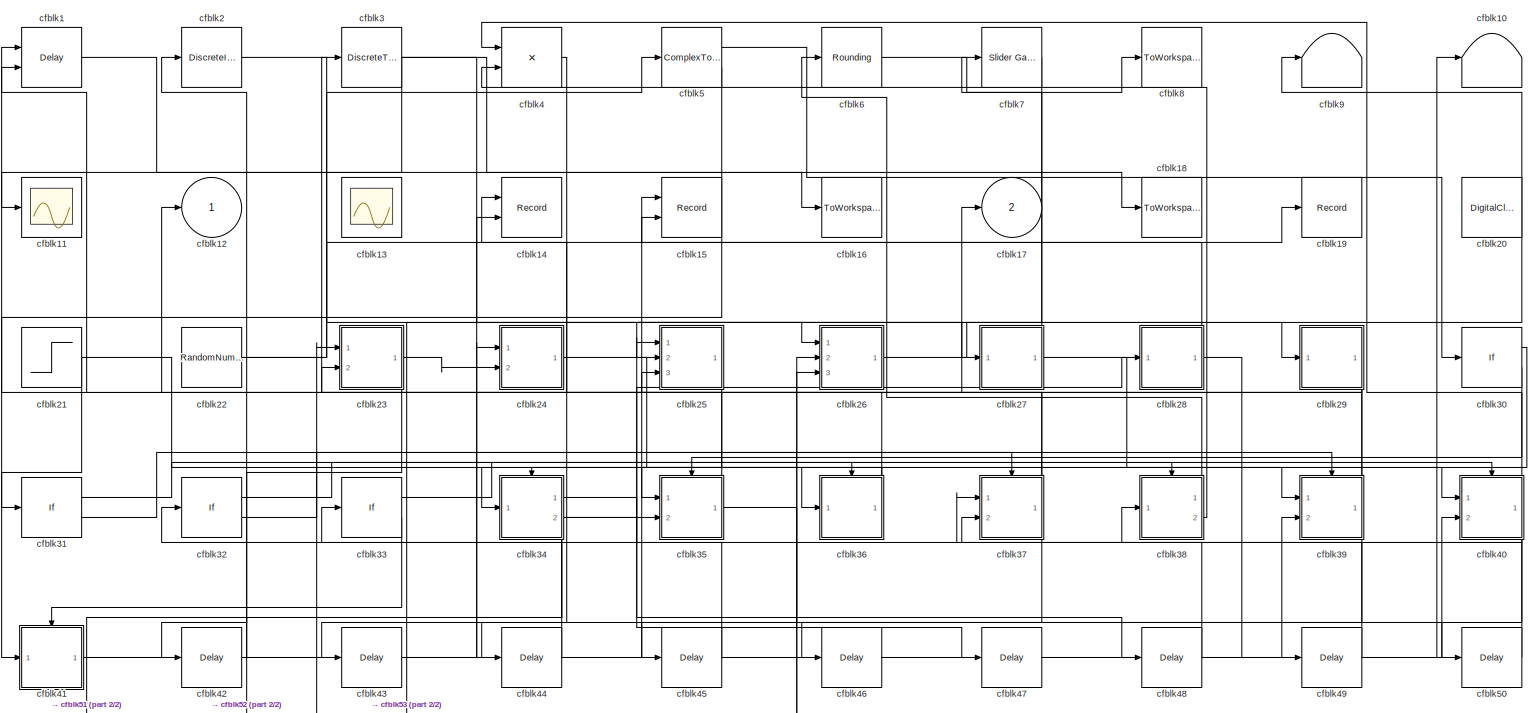
[diagram: root canvas - part 1/2, most of the canvas]
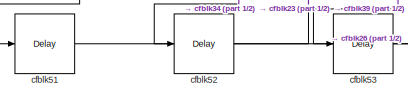
[diagram: root canvas - part 2/2, bottom left region]
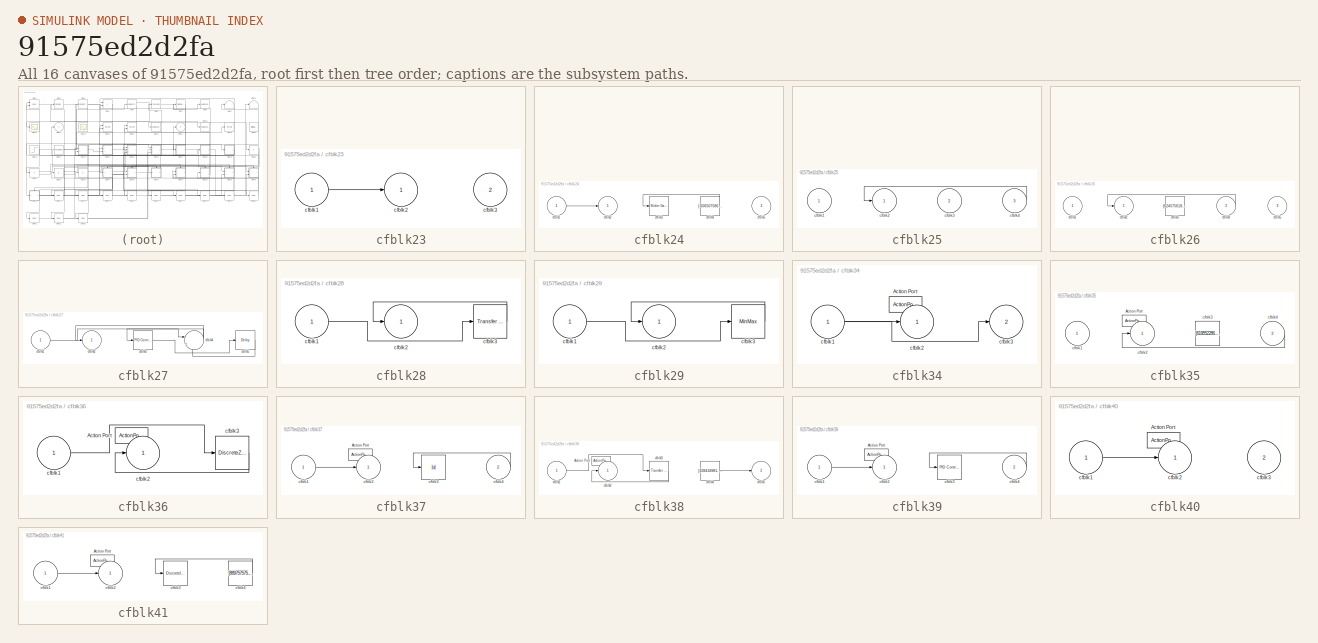
[diagram: thumbnail index - all 16 canvases of the model, root first then tree order]
MODEL slx_91575ed2d2fa
KIND model
CONFIG AbsTol = auto
CONFIG EnableMultiTasking = off
CONFIG FixedStep = auto
CONFIG MaxStep = auto
CONFIG MinStep = auto
CONFIG RelTol = 1e-3
CONFIG SampleTimeConstraint = Unconstrained
CONFIG SolverName = VariableStepAuto
CONFIG StartTime = 0.0
CONFIG StopTime = 10.0
BLOCK [Delay] cfblk1
  InputPortMap = u0,e6
  Ports = [2, 1]
  SampleTime = 1
  ShowEnablePort = on
BLOCK [Terminator] cfblk10
BLOCK [Scope] cfblk11
  Floating = off
  NumInputPorts = 1
  Ports = [1]
BLOCK [Outport] cfblk12
BLOCK [Scope] cfblk13
  Floating = on
  NumInputPorts = 1
  Ports = []
BLOCK [Record] cfblk14
  CompatibilityTag = XY
  FileSettingsInternal = {"entries":[{"content":{"excelSettings":{"content":{},"type":"Streamout.ExcelSettings"}},"type":"Streamout.FileSettingStorage","uuid":"b1ceb9cc-7e03-40a6-99d7-b30e3dfb90d7"}],"packageUris":["http://schema.mathworks.com/mf0/streamout_blocks/R2020a"],"version":"1.0"}
  Layout = [1 1]
  Ports = [2]
  SignalsInternal = {"entries":[{"content":{"signals":[{"content":{"blockPath":["sampleModel115/cfblk14"],"channel":[],"dimensions":[1],"domain":"sampleModel115/cfblk14","lineColor":"#a2142f","plots":[1],"port":1,"sid":[""],"signalID":4053,"signalName":"cfblk36"},"type":"RecordBlkView.Signal","uuid":"947220fe-0bb9-4a12-b0be-18da4abc70e8"},{"content":{"blockPath":["sampleModel115/cfblk14"],"channel":[],"dimensions":[1...<+383ch>
  VisualizationBindings = {"xyplotplugin":{"info":[{"series":[{"bindingParametersList":[{"parameter":"X-Axis","signalID":4053,"signalName":"cfblk36"},{"parameter":"Y-Axis","signalID":4057,"signalName":"cfblk41"}],"seriesID":55927}],"subplotID":1}]}}
BLOCK [Record] cfblk15
  CompatibilityTag = XY
  FileSettingsInternal = {"entries":[{"content":{"excelSettings":{"content":{},"type":"Streamout.ExcelSettings"}},"type":"Streamout.FileSettingStorage","uuid":"98b4cf14-7218-4872-a4ba-8d7d1830e3d3"}],"packageUris":["http://schema.mathworks.com/mf0/streamout_blocks/R2020a"],"version":"1.0"}
  Layout = [1 1]
  Ports = [2]
  SignalsInternal = {"entries":[{"content":{"signals":[{"content":{"blockPath":["sampleModel115/cfblk15"],"channel":[],"dimensions":[1],"domain":"sampleModel115/cfblk15","lineColor":"#a2142f","plots":[1],"port":1,"sid":[""],"signalID":4061,"signalName":"cfblk41"},"type":"RecordBlkView.Signal","uuid":"48149283-0b4a-4ff8-890c-8be74494f9ea"},{"content":{"blockPath":["sampleModel115/cfblk15"],"channel":[],"dimensions":[1...<+383ch>
  VisualizationBindings = {"xyplotplugin":{"info":[{"series":[{"bindingParametersList":[{"parameter":"X-Axis","signalID":4061,"signalName":"cfblk41"},{"parameter":"Y-Axis","signalID":4065,"signalName":"cfblk28"}],"seriesID":28598}],"subplotID":1}]}}
BLOCK [ToWorkspace] cfblk16
  FixptAsFi = on
  MaxDataPoints = inf
  Ports = [1]
  SampleTime = -1
  SaveFormat = Timeseries
  VariableName = sudrskh
BLOCK [Outport] cfblk17
  Port = 2
BLOCK [ToWorkspace] cfblk18
  FixptAsFi = on
  MaxDataPoints = inf
  Ports = [1]
  SampleTime = -1
  SaveFormat = Timeseries
  VariableName = dmhqbax
BLOCK [Record] cfblk19
  FileSettingsInternal = {"entries":[{"content":{"excelSettings":{"content":{},"type":"Streamout.ExcelSettings"}},"type":"Streamout.FileSettingStorage","uuid":"cad0cdc5-0fe9-49e7-8a7a-dd39cebd2482"}],"packageUris":["http://schema.mathworks.com/mf0/streamout_blocks/R2020a"],"version":"1.0"}
  Ports = [1]
  SignalsInternal = {"entries":[{"content":{"signals":[{"content":{"blockPath":["sampleModel115/cfblk19"],"channel":[],"dimensions":[1],"domain":"sampleModel115/cfblk19","lineColor":"#d95319","plots":[1],"port":1,"sid":[""],"signalID":4069,"signalName":"cfblk22"},"type":"RecordBlkView.Signal","uuid":"e627ca45-b87b-4f08-af19-0e4785aecbb7"}]},"type":"RecordBlkView.InputSignals","uuid":"f235e641-5202-4a38-b892-f540294f6...<+97ch>
  VisualizationBindings = {"sparklinesplugin":{"info":[{"bindingParametersList":[],"subplotID":1}]}}
BLOCK [DiscreteIntegrator] cfblk2
  ICPrevOutput = DiscIntNeverNeededParam
  ICPrevScaledInput = DiscIntNeverNeededParam
  InitialConditionSetting = Auto
  Ports = [1, 1]
BLOCK [DigitalClock] cfblk20
BLOCK [Step] cfblk21
  After = [-216518547.017650]
  Before = [-107082885.337694]
  SampleTime = 0
  Time = [16.000000]
BLOCK [RandomNumber] cfblk22
  Mean = [-52247.991135]
  SampleTime = 0.1
  Seed = [709185033.000000]
  Variance = [91177.306892]
BLOCK [SubSystem] cfblk23
  Ports = [2, 1]
  RequestExecContextInheritance = off
BLOCK [Inport] cfblk23/cfblk1
BLOCK [Outport] cfblk23/cfblk2
BLOCK [Inport] cfblk23/cfblk3
  Port = 2
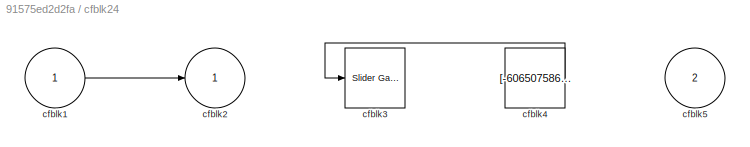
BLOCK [SubSystem] cfblk24
  Ports = [2, 1]
  RequestExecContextInheritance = off
BLOCK [Inport] cfblk24/cfblk1
BLOCK [Outport] cfblk24/cfblk2
BLOCK [Reference] cfblk24/cfblk3  REF=simulink/Math
Operations/Slider
Gain
  Ports = [1, 1]
  SourceBlock = simulink/Math\nOperations/Slider\nGain
  SourceProductBaseCode = SL
  SourceType = Slider Gain
BLOCK [Constant] cfblk24/cfblk4
  SampleTime = 1
  Value = [-606507586.060954]
BLOCK [Inport] cfblk24/cfblk5
  Port = 2
BLOCK [SubSystem] cfblk25
  Ports = [3, 1]
  RequestExecContextInheritance = off
BLOCK [Inport] cfblk25/cfblk1
BLOCK [Outport] cfblk25/cfblk2
BLOCK [Inport] cfblk25/cfblk3
  Port = 2
BLOCK [Inport] cfblk25/cfblk4
  Port = 3
BLOCK [SubSystem] cfblk26
  Ports = [3, 1]
  RequestExecContextInheritance = off
BLOCK [Inport] cfblk26/cfblk1
BLOCK [Outport] cfblk26/cfblk2
BLOCK [Constant] cfblk26/cfblk3
  SampleTime = 1
  Value = [624575618.430073]
BLOCK [Inport] cfblk26/cfblk4
  Port = 2
BLOCK [Inport] cfblk26/cfblk5
  Port = 3
BLOCK [SubSystem] cfblk27
  Ports = [1, 1]
  RequestExecContextInheritance = off
BLOCK [Inport] cfblk27/cfblk1
BLOCK [Outport] cfblk27/cfblk2
BLOCK [Reference] cfblk27/cfblk3  REF=slpidlib/PID Controller
  Ports = [1, 1]
  SourceBlock = slpidlib/PID Controller
  SourceProductBaseCode = SL
  SourceType = PID 1dof
BLOCK [Sum] cfblk27/cfblk4
  Inputs = |++
  Ports = [2, 1]
BLOCK [Delay] cfblk27/cfblk5
  InputPortMap = u0
  Ports = [1, 1]
  SampleTime = 1
BLOCK [SubSystem] cfblk28
  Ports = [1, 1]
  RequestExecContextInheritance = off
BLOCK [Inport] cfblk28/cfblk1
BLOCK [Outport] cfblk28/cfblk2
BLOCK [Reference] cfblk28/cfblk3  REF=simulink/Discrete/Transfer Fcn
Real Zero
  Ports = [1, 1]
  SourceBlock = simulink/Discrete/Transfer Fcn\nReal Zero
  SourceProductBaseCode = SL
  SourceType = Transfer Fcn Real Zero
BLOCK [SubSystem] cfblk29
  Ports = [1, 1]
  RequestExecContextInheritance = off
BLOCK [Inport] cfblk29/cfblk1
BLOCK [Outport] cfblk29/cfblk2
BLOCK [MinMax] cfblk29/cfblk3
  Function = max
  Ports = [1, 1]
BLOCK [DiscreteTransferFcn] cfblk3
  InputPortMap = u0
  Ports = [1, 1]
  SampleTime = 1
BLOCK [If] cfblk30
  IfExpression = u1 >= 0
  Ports = [1, 2]
  SampleTime = 1
BLOCK [If] cfblk31
  IfExpression = u1 >= 0
  Ports = [1, 2]
  SampleTime = 1
BLOCK [If] cfblk32
  IfExpression = u1 >= 0
  Ports = [1, 2]
  SampleTime = 1
BLOCK [If] cfblk33
  IfExpression = u1 >= 0
  Ports = [1, 2]
  SampleTime = 1
BLOCK [SubSystem] cfblk34
  Ports = [1, 2, 0, 0, 0, 0, 0, 1]
  RequestExecContextInheritance = off
  TreatAsAtomicUnit = on
BLOCK [ActionPort] cfblk34/Action Port
  ActionPortLabel = if(u1 >= 0)
BLOCK [Inport] cfblk34/cfblk1
BLOCK [Outport] cfblk34/cfblk2
BLOCK [Outport] cfblk34/cfblk3
  Port = 2
BLOCK [SubSystem] cfblk35
  Ports = [2, 1, 0, 0, 0, 0, 0, 1]
  RequestExecContextInheritance = off
  TreatAsAtomicUnit = on
BLOCK [ActionPort] cfblk35/Action Port
  ActionPortLabel = else
BLOCK [Inport] cfblk35/cfblk1
BLOCK [Outport] cfblk35/cfblk2
BLOCK [Constant] cfblk35/cfblk3
  SampleTime = 1
  Value = [619552286.522777]
BLOCK [Inport] cfblk35/cfblk4
  Port = 2
BLOCK [SubSystem] cfblk36
  Ports = [1, 1, 0, 0, 0, 0, 0, 1]
  RequestExecContextInheritance = off
  TreatAsAtomicUnit = on
BLOCK [ActionPort] cfblk36/Action Port
  ActionPortLabel = if(u1 >= 0)
BLOCK [Inport] cfblk36/cfblk1
BLOCK [Outport] cfblk36/cfblk2
BLOCK [DiscreteZeroPole] cfblk36/cfblk3
  Gain = 1
  Poles = [0 0.5]
  SampleTime = -1
BLOCK [SubSystem] cfblk37
  Ports = [2, 1, 0, 0, 0, 0, 0, 1]
  RequestExecContextInheritance = off
  TreatAsAtomicUnit = on
BLOCK [ActionPort] cfblk37/Action Port
  ActionPortLabel = else
BLOCK [Inport] cfblk37/cfblk1
BLOCK [Outport] cfblk37/cfblk2
BLOCK [Abs] cfblk37/cfblk3
  SaturateOnIntegerOverflow = off
BLOCK [Inport] cfblk37/cfblk4
  Port = 2
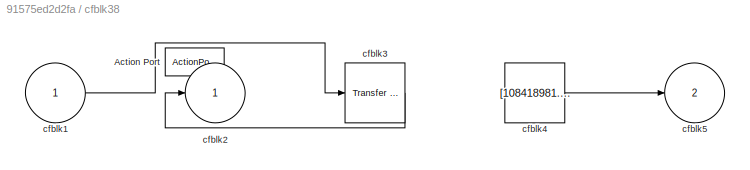
BLOCK [SubSystem] cfblk38
  Ports = [1, 2, 0, 0, 0, 0, 0, 1]
  RequestExecContextInheritance = off
  TreatAsAtomicUnit = on
BLOCK [ActionPort] cfblk38/Action Port
  ActionPortLabel = if(u1 >= 0)
BLOCK [Inport] cfblk38/cfblk1
BLOCK [Outport] cfblk38/cfblk2
BLOCK [Reference] cfblk38/cfblk3  REF=simulink/Discrete/Transfer Fcn
First Order
  Ports = [1, 1]
  SourceBlock = simulink/Discrete/Transfer Fcn\nFirst Order
  SourceProductBaseCode = SL
  SourceType = First Order Transfer Fcn
BLOCK [Constant] cfblk38/cfblk4
  SampleTime = 1
  Value = [108418981.364866]
BLOCK [Outport] cfblk38/cfblk5
  Port = 2
BLOCK [SubSystem] cfblk39
  Ports = [2, 1, 0, 0, 0, 0, 0, 1]
  RequestExecContextInheritance = off
  TreatAsAtomicUnit = on
BLOCK [ActionPort] cfblk39/Action Port
  ActionPortLabel = else
BLOCK [Inport] cfblk39/cfblk1
BLOCK [Outport] cfblk39/cfblk2
BLOCK [Reference] cfblk39/cfblk3  REF=slpidlib/PID Controller
  Ports = [1, 1]
  SourceBlock = slpidlib/PID Controller
  SourceProductBaseCode = SL
  SourceType = PID 1dof
BLOCK [Inport] cfblk39/cfblk4
  Port = 2
BLOCK [Product] cfblk4
  Inputs = **
  Ports = [2, 1]
BLOCK [SubSystem] cfblk40
  Ports = [2, 1, 0, 0, 0, 0, 0, 1]
  RequestExecContextInheritance = off
  TreatAsAtomicUnit = on
BLOCK [ActionPort] cfblk40/Action Port
  ActionPortLabel = if(u1 >= 0)
BLOCK [Inport] cfblk40/cfblk1
BLOCK [Outport] cfblk40/cfblk2
BLOCK [Inport] cfblk40/cfblk3
  Port = 2
BLOCK [SubSystem] cfblk41
  Ports = [1, 1, 0, 0, 0, 0, 0, 1]
  RequestExecContextInheritance = off
  TreatAsAtomicUnit = on
BLOCK [ActionPort] cfblk41/Action Port
  ActionPortLabel = else
BLOCK [Inport] cfblk41/cfblk1
BLOCK [Outport] cfblk41/cfblk2
BLOCK [DiscreteIntegrator] cfblk41/cfblk3
  ICPrevOutput = DiscIntNeverNeededParam
  ICPrevScaledInput = DiscIntNeverNeededParam
  InitialConditionSetting = Auto
  Ports = [1, 1]
  SampleTime = -1
BLOCK [Constant] cfblk41/cfblk4
  SampleTime = 1
  Value = [889757575.999530]
BLOCK [Delay] cfblk42
  InputPortMap = u0
  Ports = [1, 1]
  SampleTime = 1
BLOCK [Delay] cfblk43
  InputPortMap = u0
  Ports = [1, 1]
  SampleTime = 1
BLOCK [Delay] cfblk44
  InputPortMap = u0
  Ports = [1, 1]
  SampleTime = 1
BLOCK [Delay] cfblk45
  InputPortMap = u0
  Ports = [1, 1]
  SampleTime = 1
BLOCK [Delay] cfblk46
  InputPortMap = u0
  Ports = [1, 1]
  SampleTime = 1
BLOCK [Delay] cfblk47
  InputPortMap = u0
  Ports = [1, 1]
  SampleTime = 1
BLOCK [Delay] cfblk48
  InputPortMap = u0
  Ports = [1, 1]
  SampleTime = 1
BLOCK [Delay] cfblk49
  InputPortMap = u0
  Ports = [1, 1]
  SampleTime = 1
BLOCK [ComplexToRealImag] cfblk5
  Ports = [1, 2]
BLOCK [Delay] cfblk50
  InputPortMap = u0
  Ports = [1, 1]
  SampleTime = 1
BLOCK [Delay] cfblk51
  InputPortMap = u0
  Ports = [1, 1]
  SampleTime = 1
BLOCK [Delay] cfblk52
  InputPortMap = u0
  Ports = [1, 1]
  SampleTime = 1
BLOCK [Delay] cfblk53
  InputPortMap = u0
  Ports = [1, 1]
  SampleTime = 1
BLOCK [Rounding] cfblk6
BLOCK [Reference] cfblk7  REF=simulink/Math
Operations/Slider
Gain
  Ports = [1, 1]
  SourceBlock = simulink/Math\nOperations/Slider\nGain
  SourceProductBaseCode = SL
  SourceType = Slider Gain
BLOCK [ToWorkspace] cfblk8
  FixptAsFi = on
  MaxDataPoints = inf
  Ports = [1]
  SampleTime = -1
  SaveFormat = Timeseries
  VariableName = sciofoe
BLOCK [Terminator] cfblk9
LINE cfblk1:1 -> cfblk18:1
NET cfblk20:1 -> cfblk25:2, cfblk9:1
NET cfblk21:1 -> cfblk31:1, cfblk36:1
NET cfblk22:1 -> cfblk19:1, cfblk5:1
LINE cfblk23/cfblk1:1 -> cfblk23/cfblk2:1
NET cfblk23:1 -> cfblk24:2, cfblk42:1
LINE cfblk24/cfblk1:1 -> cfblk24/cfblk2:1
LINE cfblk24/cfblk4:1 -> cfblk24/cfblk3:1
LINE cfblk24:1 -> cfblk39:1
LINE cfblk25/cfblk4:1 -> cfblk25/cfblk2:1
LINE cfblk25:1 -> cfblk34:1
LINE cfblk26/cfblk4:1 -> cfblk26/cfblk2:1
LINE cfblk26:1 -> cfblk29:1
LINE cfblk27/cfblk1:1 -> cfblk27/cfblk4:1
LINE cfblk27/cfblk3:1 -> cfblk27/cfblk5:1
NET cfblk27/cfblk4:1 -> cfblk27/cfblk2:1, cfblk27/cfblk3:1
LINE cfblk27/cfblk5:1 -> cfblk27/cfblk4:2
NET cfblk27:1 -> cfblk40:1, cfblk7:1
LINE cfblk28/cfblk1:1 -> cfblk28/cfblk3:1
LINE cfblk28/cfblk3:1 -> cfblk28/cfblk2:1
NET cfblk28:1 -> cfblk15:2, cfblk49:1
LINE cfblk29/cfblk1:1 -> cfblk29/cfblk3:1
LINE cfblk29/cfblk3:1 -> cfblk29/cfblk2:1
NET cfblk29:1 -> cfblk1:1, cfblk23:2
LINE cfblk2:1 -> cfblk26:1
LINE cfblk30:1 -> cfblk34:ifaction
LINE cfblk30:2 -> cfblk35:ifaction
LINE cfblk31:1 -> cfblk36:ifaction
LINE cfblk31:2 -> cfblk37:ifaction
LINE cfblk32:1 -> cfblk38:ifaction
LINE cfblk32:2 -> cfblk39:ifaction
LINE cfblk33:1 -> cfblk40:ifaction
LINE cfblk33:2 -> cfblk41:ifaction
NET cfblk34/cfblk1:1 -> cfblk34/cfblk2:1, cfblk34/cfblk3:1
LINE cfblk34:1 -> cfblk47:1
NET cfblk34:2 -> cfblk28:1, cfblk35:2, cfblk48:1, cfblk51:1, cfblk52:1
LINE cfblk35/cfblk4:1 -> cfblk35/cfblk2:1
NET cfblk35:1 -> cfblk12:1, cfblk50:1
LINE cfblk36/cfblk1:1 -> cfblk36/cfblk3:1
LINE cfblk36/cfblk3:1 -> cfblk36/cfblk2:1
NET cfblk36:1 -> cfblk14:1, cfblk35:1
LINE cfblk37/cfblk1:1 -> cfblk37/cfblk2:1
LINE cfblk37/cfblk4:1 -> cfblk37/cfblk3:1
NET cfblk37:1 -> cfblk17:1, cfblk25:3, cfblk46:1
LINE cfblk38/cfblk1:1 -> cfblk38/cfblk3:1
LINE cfblk38/cfblk3:1 -> cfblk38/cfblk2:1
LINE cfblk38/cfblk4:1 -> cfblk38/cfblk5:1
LINE cfblk38:1 -> cfblk6:1
LINE cfblk38:2 -> cfblk4:2
LINE cfblk39/cfblk1:1 -> cfblk39/cfblk2:1
LINE cfblk39/cfblk4:1 -> cfblk39/cfblk3:1
NET cfblk39:1 -> cfblk1:2, cfblk3:1, cfblk53:1
NET cfblk3:1 -> cfblk11:1, cfblk16:1, cfblk27:1
LINE cfblk40/cfblk1:1 -> cfblk40/cfblk2:1
NET cfblk40:1 -> cfblk37:2, cfblk45:1, cfblk4:1
LINE cfblk41/cfblk1:1 -> cfblk41/cfblk2:1
LINE cfblk41/cfblk4:1 -> cfblk41/cfblk3:1
NET cfblk41:1 -> cfblk10:1, cfblk14:2, cfblk15:1
LINE cfblk42:1 -> cfblk2:1
LINE cfblk43:1 -> cfblk24:1
LINE cfblk44:1 -> cfblk33:1
LINE cfblk45:1 -> cfblk32:1
LINE cfblk46:1 -> cfblk40:2
LINE cfblk47:1 -> cfblk39:2
LINE cfblk48:1 -> cfblk38:1
LINE cfblk49:1 -> cfblk37:1
LINE cfblk4:1 -> cfblk44:1
LINE cfblk50:1 -> cfblk25:1
LINE cfblk51:1 -> cfblk23:1
LINE cfblk52:1 -> cfblk26:2
LINE cfblk53:1 -> cfblk26:3
LINE cfblk5:1 -> cfblk30:1
LINE cfblk5:2 -> cfblk41:1
LINE cfblk6:1 -> cfblk8:1
LINE cfblk7:1 -> cfblk43:1
note: NET lines group one-source signal fan-out (src -> all destinations, sorted); 1:1 wires keep LINE
